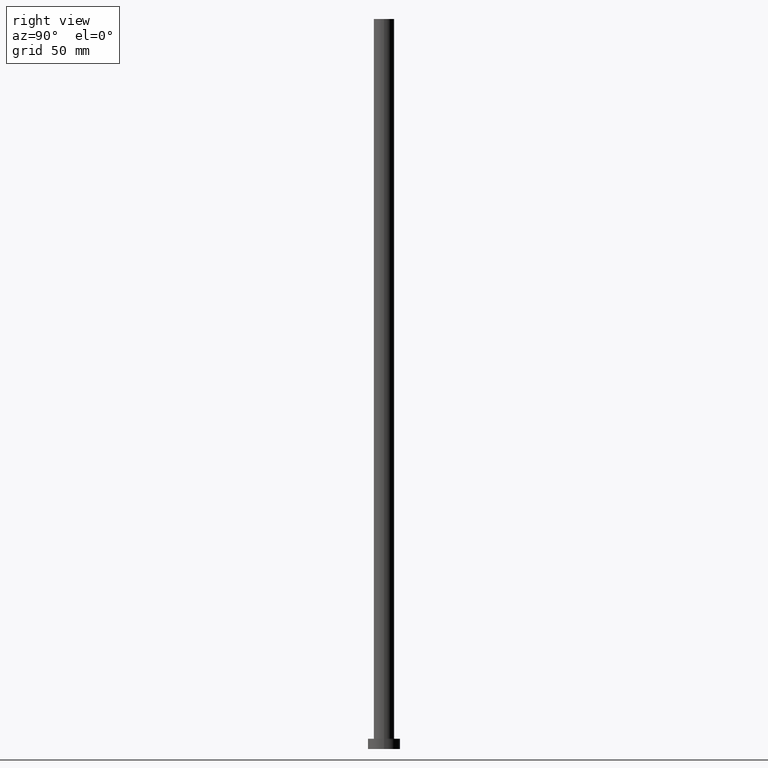
[diagram: clean part render]
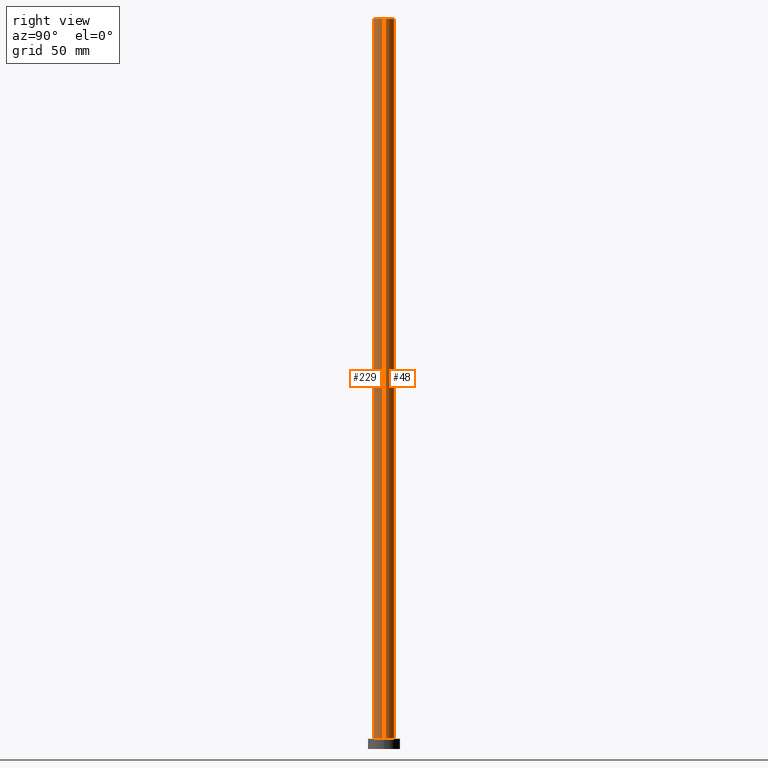
[diagram: same view with one multi-face feature highlighted, each face labeled with its STEP entity id]
A machine part, right view. The highlighted faces form ONE feature: a constant-radius fillet chain: 2 tangent blend faces with common blend radius 7 mm. The faces share edges in the B-rep.
Their STEP definitions:
[1] entity #48 (Cylinder):
#9 = ORIENTED_EDGE ( 'NONE', *, *, #190, .T. ) ;
#17 = CARTESIAN_POINT ( 'NONE',  ( 0.000000000000000000, 0.000000000000000000, 7.000000000000000000 ) ) ;
#22 = CARTESIAN_POINT ( 'NONE',  ( -7.000000000000000888, 0.000000000000000000, 7.000000000000000000 ) ) ;
#23 = LINE ( 'NONE', #233, #25 ) ;
#25 = VECTOR ( 'NONE', #154, 1000.000000000000000 ) ;
#29 = EDGE_CURVE ( 'NONE', #88, #165, #209, .T. ) ;
#31 = FACE_OUTER_BOUND ( 'NONE', #205, .T. ) ;
#40 = AXIS2_PLACEMENT_3D ( 'NONE', #235, #145, #90 ) ;
#48 = ADVANCED_FACE ( 'NONE', ( #31 ), #68, .T. ) ;
#49 = ORIENTED_EDGE ( 'NONE', *, *, #29, .F. ) ;
#63 = VERTEX_POINT ( 'NONE', #224 ) ;
#67 = EDGE_CURVE ( 'NONE', #120, #165, #226, .T. ) ;
#68 = CYLINDRICAL_SURFACE ( 'NONE', #40, 7.000000000000000888 ) ;
#83 = ORIENTED_EDGE ( 'NONE', *, *, #245, .F. ) ;
#88 = VERTEX_POINT ( 'NONE', #215 ) ;
#90 = DIRECTION ( 'NONE',  ( -1.000000000000000000, 0.000000000000000000, 0.000000000000000000 ) ) ;
#95 = VECTOR ( 'NONE', #127, 1000.000000000000000 ) ;
#113 = DIRECTION ( 'NONE',  ( 1.000000000000000000, 0.000000000000000000, 0.000000000000000000 ) ) ;
#120 = VERTEX_POINT ( 'NONE', #132 ) ;
#127 = DIRECTION ( 'NONE',  ( -0.000000000000000000, -0.000000000000000000, -1.000000000000000000 ) ) ;
#129 = DIRECTION ( 'NONE',  ( 1.000000000000000000, 0.000000000000000000, 0.000000000000000000 ) ) ;
#130 = DIRECTION ( 'NONE',  ( 0.000000000000000000, 0.000000000000000000, 1.000000000000000000 ) ) ;
#132 = CARTESIAN_POINT ( 'NONE',  ( 7.000000000000000888, 8.572527594031474176E-16, 7.000000000000000000 ) ) ;
#145 = DIRECTION ( 'NONE',  ( -0.000000000000000000, -0.000000000000000000, -1.000000000000000000 ) ) ;
#154 = DIRECTION ( 'NONE',  ( -0.000000000000000000, -0.000000000000000000, -1.000000000000000000 ) ) ;
#165 = VERTEX_POINT ( 'NONE', #22 ) ;
#167 = AXIS2_PLACEMENT_3D ( 'NONE', #221, #198, #129 ) ;
#188 = ORIENTED_EDGE ( 'NONE', *, *, #67, .T. ) ;
#189 = AXIS2_PLACEMENT_3D ( 'NONE', #17, #130, #113 ) ;
#190 = EDGE_CURVE ( 'NONE', #63, #120, #23, .T. ) ;
#198 = DIRECTION ( 'NONE',  ( 0.000000000000000000, 0.000000000000000000, 1.000000000000000000 ) ) ;
#205 = EDGE_LOOP ( 'NONE', ( #83, #9, #188, #49 ) ) ;
#209 = LINE ( 'NONE', #231, #95 ) ;
#215 = CARTESIAN_POINT ( 'NONE',  ( -7.000000000000000888, 0.000000000000000000, 500.0000000000000000 ) ) ;
#221 = CARTESIAN_POINT ( 'NONE',  ( 0.000000000000000000, 0.000000000000000000, 500.0000000000000000 ) ) ;
#224 = CARTESIAN_POINT ( 'NONE',  ( 7.000000000000000888, 8.572527594031474176E-16, 500.0000000000000000 ) ) ;
#226 = CIRCLE ( 'NONE', #189, 7.000000000000000888 ) ;
#231 = CARTESIAN_POINT ( 'NONE',  ( -7.000000000000000888, 0.000000000000000000, 500.0000000000000000 ) ) ;
#233 = CARTESIAN_POINT ( 'NONE',  ( 7.000000000000000888, 8.572527594031474176E-16, 500.0000000000000000 ) ) ;
#235 = CARTESIAN_POINT ( 'NONE',  ( 0.000000000000000000, 0.000000000000000000, 500.0000000000000000 ) ) ;
#245 = EDGE_CURVE ( 'NONE', #63, #88, #247, .T. ) ;
#247 = CIRCLE ( 'NONE', #167, 7.000000000000000888 ) ;
[2] entity #229 (Cylinder):
#2 = DIRECTION ( 'NONE',  ( 0.000000000000000000, 0.000000000000000000, 1.000000000000000000 ) ) ;
#3 = DIRECTION ( 'NONE',  ( 0.000000000000000000, 0.000000000000000000, 1.000000000000000000 ) ) ;
#22 = CARTESIAN_POINT ( 'NONE',  ( -7.000000000000000888, 0.000000000000000000, 7.000000000000000000 ) ) ;
#23 = LINE ( 'NONE', #233, #25 ) ;
#25 = VECTOR ( 'NONE', #154, 1000.000000000000000 ) ;
#29 = EDGE_CURVE ( 'NONE', #88, #165, #209, .T. ) ;
#46 = ORIENTED_EDGE ( 'NONE', *, *, #29, .T. ) ;
#62 = EDGE_CURVE ( 'NONE', #165, #120, #64, .T. ) ;
#63 = VERTEX_POINT ( 'NONE', #224 ) ;
#64 = CIRCLE ( 'NONE', #184, 7.000000000000000888 ) ;
#73 = DIRECTION ( 'NONE',  ( 1.000000000000000000, 0.000000000000000000, 0.000000000000000000 ) ) ;
#75 = DIRECTION ( 'NONE',  ( 1.000000000000000000, 0.000000000000000000, 0.000000000000000000 ) ) ;
#88 = VERTEX_POINT ( 'NONE', #215 ) ;
#95 = VECTOR ( 'NONE', #127, 1000.000000000000000 ) ;
#120 = VERTEX_POINT ( 'NONE', #132 ) ;
#125 = AXIS2_PLACEMENT_3D ( 'NONE', #177, #147, #153 ) ;
#127 = DIRECTION ( 'NONE',  ( -0.000000000000000000, -0.000000000000000000, -1.000000000000000000 ) ) ;
#128 = ORIENTED_EDGE ( 'NONE', *, *, #166, .F. ) ;
#132 = CARTESIAN_POINT ( 'NONE',  ( 7.000000000000000888, 8.572527594031474176E-16, 7.000000000000000000 ) ) ;
#135 = FACE_OUTER_BOUND ( 'NONE', #151, .T. ) ;
#138 = CIRCLE ( 'NONE', #240, 7.000000000000000888 ) ;
#147 = DIRECTION ( 'NONE',  ( -0.000000000000000000, -0.000000000000000000, -1.000000000000000000 ) ) ;
#151 = EDGE_LOOP ( 'NONE', ( #163, #128, #46, #248 ) ) ;
#153 = DIRECTION ( 'NONE',  ( -1.000000000000000000, 0.000000000000000000, 0.000000000000000000 ) ) ;
#154 = DIRECTION ( 'NONE',  ( -0.000000000000000000, -0.000000000000000000, -1.000000000000000000 ) ) ;
#163 = ORIENTED_EDGE ( 'NONE', *, *, #190, .F. ) ;
#165 = VERTEX_POINT ( 'NONE', #22 ) ;
#166 = EDGE_CURVE ( 'NONE', #88, #63, #138, .T. ) ;
#172 = CARTESIAN_POINT ( 'NONE',  ( 0.000000000000000000, 0.000000000000000000, 500.0000000000000000 ) ) ;
#177 = CARTESIAN_POINT ( 'NONE',  ( 0.000000000000000000, 0.000000000000000000, 500.0000000000000000 ) ) ;
#184 = AXIS2_PLACEMENT_3D ( 'NONE', #241, #2, #73 ) ;
#190 = EDGE_CURVE ( 'NONE', #63, #120, #23, .T. ) ;
#209 = LINE ( 'NONE', #231, #95 ) ;
#215 = CARTESIAN_POINT ( 'NONE',  ( -7.000000000000000888, 0.000000000000000000, 500.0000000000000000 ) ) ;
#224 = CARTESIAN_POINT ( 'NONE',  ( 7.000000000000000888, 8.572527594031474176E-16, 500.0000000000000000 ) ) ;
#229 = ADVANCED_FACE ( 'NONE', ( #135 ), #236, .T. ) ;
#231 = CARTESIAN_POINT ( 'NONE',  ( -7.000000000000000888, 0.000000000000000000, 500.0000000000000000 ) ) ;
#233 = CARTESIAN_POINT ( 'NONE',  ( 7.000000000000000888, 8.572527594031474176E-16, 500.0000000000000000 ) ) ;
#236 = CYLINDRICAL_SURFACE ( 'NONE', #125, 7.000000000000000888 ) ;
#240 = AXIS2_PLACEMENT_3D ( 'NONE', #172, #3, #75 ) ;
#241 = CARTESIAN_POINT ( 'NONE',  ( 0.000000000000000000, 0.000000000000000000, 7.000000000000000000 ) ) ;
#248 = ORIENTED_EDGE ( 'NONE', *, *, #62, .T. ) ;